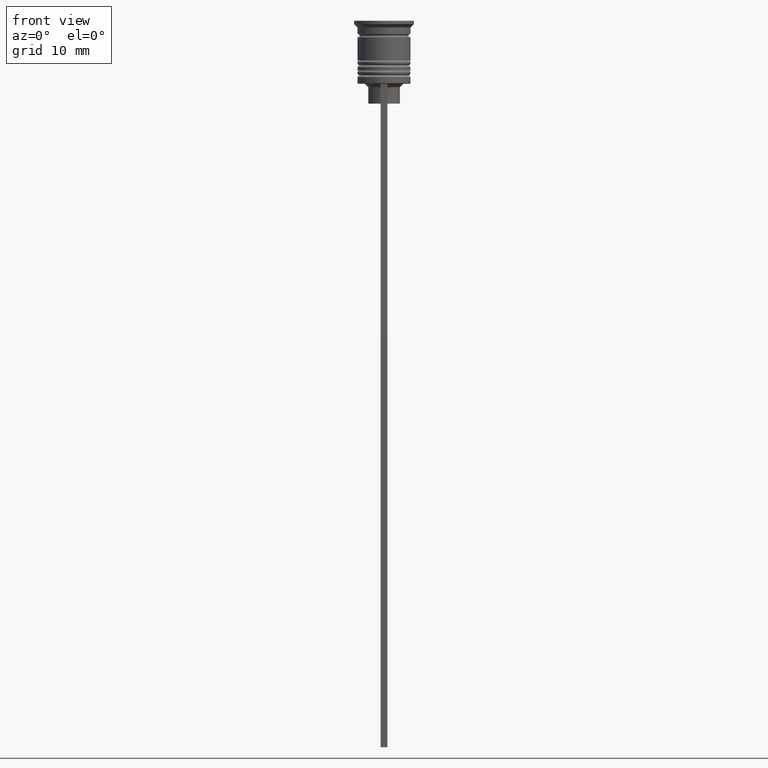
[diagram: clean part render]
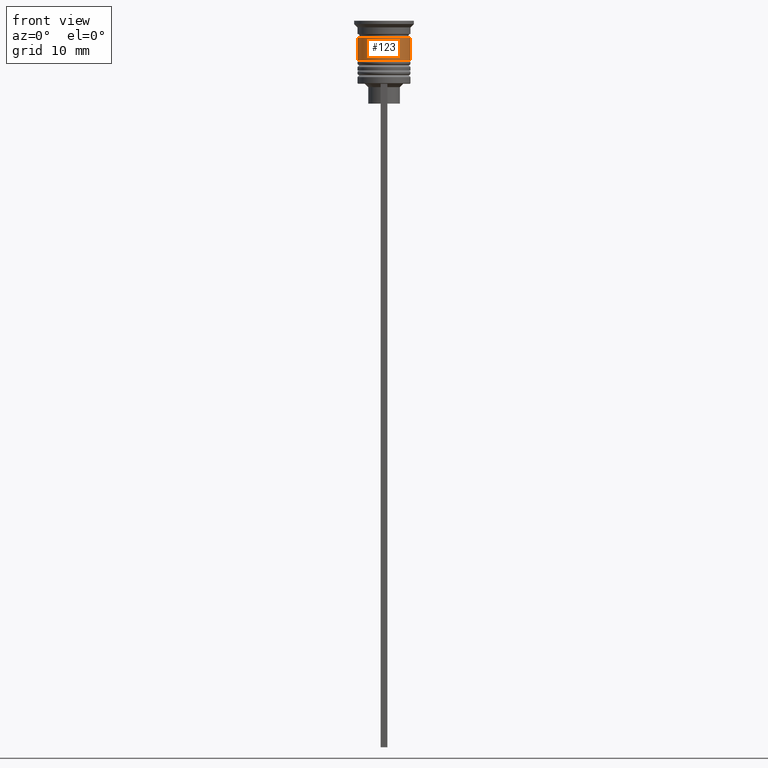
[diagram: same view with one face highlighted and labeled with its STEP entity id]
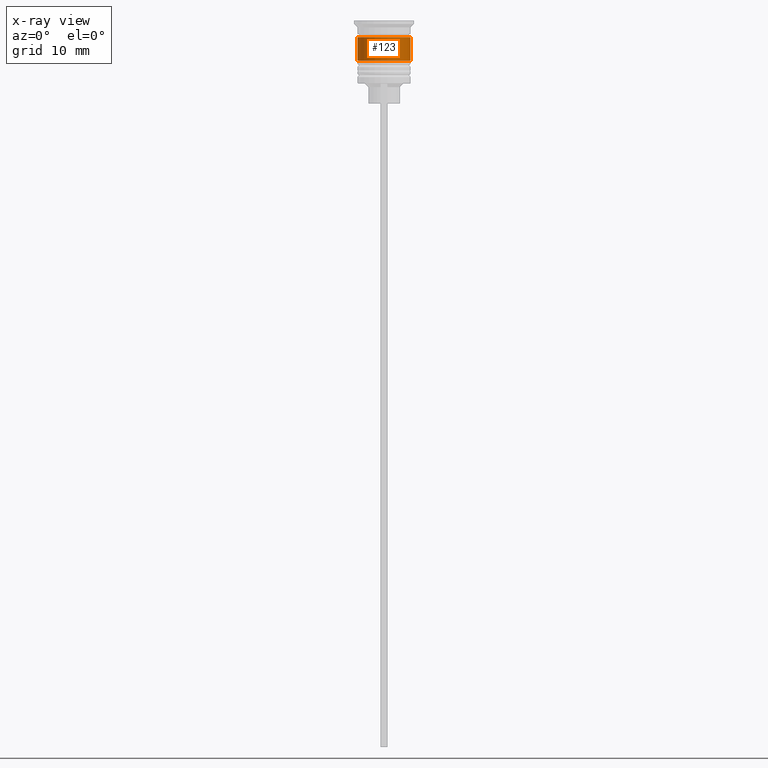
[diagram: x-ray of the same camera — body ghosted, the highlighted face saturated]
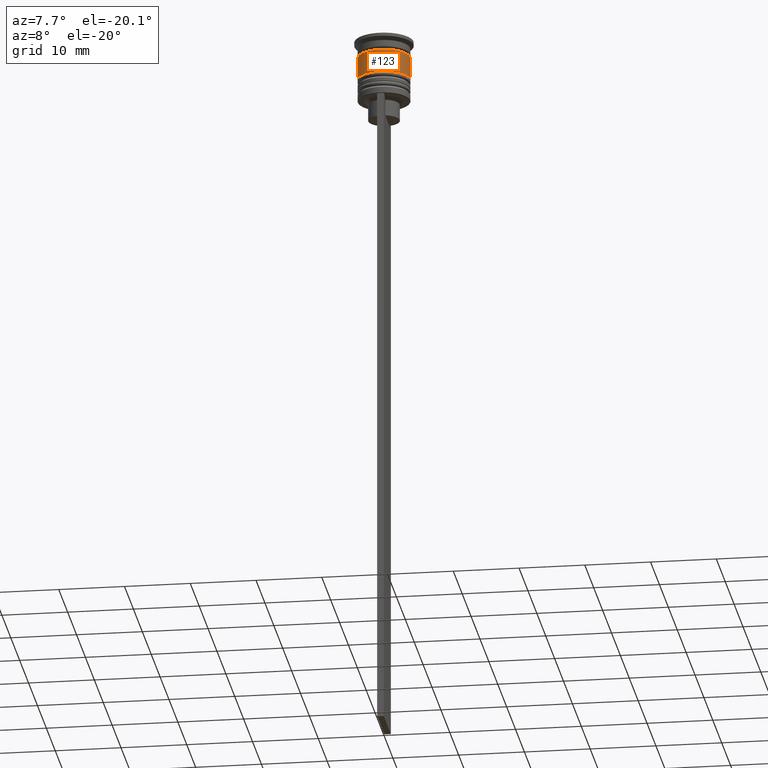
[diagram: same view with one face highlighted and labeled with its STEP entity id]
A machine part, front view. The second image highlights one B-rep face of the part: STEP entity #123.
The next image is the same camera in x-ray: the body ghosted, the highlighted face saturated — about 0% of this face is hidden behind the body in this view.
A second angle (auxiliary view) of the same face is appended — the face is thin or edge-on in the first view.
In plain terms, the highlighted cylindrical surface (edge-blend (fillet) strip) has radius 4 mm, axis along (-0, -0, 1).
Its self-contained STEP definition (entity closure, byte-faithful):
#96 = CARTESIAN_POINT ( 'NONE',  ( 4.000000000000000000, 0.000000000000000000, -2.500000000000000000 ) ) ;
#123 = ADVANCED_FACE ( 'NONE', ( #2283 ), #1314, .T. ) ;
#152 = DIRECTION ( 'NONE',  ( -0.000000000000000000, -0.000000000000000000, 1.000000000000000000 ) ) ;
#170 = DIRECTION ( 'NONE',  ( -0.000000000000000000, -0.000000000000000000, 1.000000000000000000 ) ) ;
#232 = LINE ( 'NONE', #1007, #1112 ) ;
#238 = DIRECTION ( 'NONE',  ( -0.000000000000000000, -0.000000000000000000, 1.000000000000000000 ) ) ;
#287 = VERTEX_POINT ( 'NONE', #881 ) ;
#341 = CARTESIAN_POINT ( 'NONE',  ( 0.000000000000000000, 0.000000000000000000, 0.000000000000000000 ) ) ;
#445 = CIRCLE ( 'NONE', #1886, 4.000000000000000000 ) ;
#476 = ORIENTED_EDGE ( 'NONE', *, *, #1012, .F. ) ;
#493 = CARTESIAN_POINT ( 'NONE',  ( -4.000000000000000000, 4.898587196589412829E-16, -2.500000000000000000 ) ) ;
#495 = AXIS2_PLACEMENT_3D ( 'NONE', #761, #170, #912 ) ;
#673 = DIRECTION ( 'NONE',  ( -0.000000000000000000, -0.000000000000000000, 1.000000000000000000 ) ) ;
#761 = CARTESIAN_POINT ( 'NONE',  ( 0.000000000000000000, 0.000000000000000000, -6.000000000000000000 ) ) ;
#774 = EDGE_CURVE ( 'NONE', #1768, #929, #232, .T. ) ;
#881 = CARTESIAN_POINT ( 'NONE',  ( 4.000000000000000888, 0.000000000000000000, -6.000000000000000000 ) ) ;
#896 = CARTESIAN_POINT ( 'NONE',  ( 0.000000000000000000, 0.000000000000000000, -2.500000000000000000 ) ) ;
#902 = AXIS2_PLACEMENT_3D ( 'NONE', #341, #152, #930 ) ;
#912 = DIRECTION ( 'NONE',  ( 1.000000000000000000, 0.000000000000000000, 0.000000000000000000 ) ) ;
#929 = VERTEX_POINT ( 'NONE', #493 ) ;
#930 = DIRECTION ( 'NONE',  ( 1.000000000000000000, 0.000000000000000000, 0.000000000000000000 ) ) ;
#1006 = EDGE_LOOP ( 'NONE', ( #2145, #1374, #1414, #476 ) ) ;
#1007 = CARTESIAN_POINT ( 'NONE',  ( -4.000000000000000000, 4.898587196589412829E-16, 0.000000000000000000 ) ) ;
#1012 = EDGE_CURVE ( 'NONE', #929, #1448, #445, .T. ) ;
#1050 = DIRECTION ( 'NONE',  ( -0.000000000000000000, -0.000000000000000000, 1.000000000000000000 ) ) ;
#1112 = VECTOR ( 'NONE', #238, 1000.000000000000000 ) ;
#1132 = EDGE_CURVE ( 'NONE', #1768, #287, #2098, .T. ) ;
#1314 = CYLINDRICAL_SURFACE ( 'NONE', #902, 4.000000000000000000 ) ;
#1374 = ORIENTED_EDGE ( 'NONE', *, *, #1132, .T. ) ;
#1414 = ORIENTED_EDGE ( 'NONE', *, *, #2050, .T. ) ;
#1419 = LINE ( 'NONE', #2240, #2173 ) ;
#1448 = VERTEX_POINT ( 'NONE', #96 ) ;
#1671 = DIRECTION ( 'NONE',  ( 1.000000000000000000, 0.000000000000000000, 0.000000000000000000 ) ) ;
#1768 = VERTEX_POINT ( 'NONE', #1834 ) ;
#1834 = CARTESIAN_POINT ( 'NONE',  ( -4.000000000000000888, 4.898587196589413815E-16, -6.000000000000000000 ) ) ;
#1886 = AXIS2_PLACEMENT_3D ( 'NONE', #896, #673, #1671 ) ;
#2050 = EDGE_CURVE ( 'NONE', #287, #1448, #1419, .T. ) ;
#2098 = CIRCLE ( 'NONE', #495, 4.000000000000000888 ) ;
#2145 = ORIENTED_EDGE ( 'NONE', *, *, #774, .F. ) ;
#2173 = VECTOR ( 'NONE', #1050, 1000.000000000000000 ) ;
#2240 = CARTESIAN_POINT ( 'NONE',  ( 4.000000000000000000, 0.000000000000000000, 0.000000000000000000 ) ) ;
#2283 = FACE_OUTER_BOUND ( 'NONE', #1006, .T. ) ;